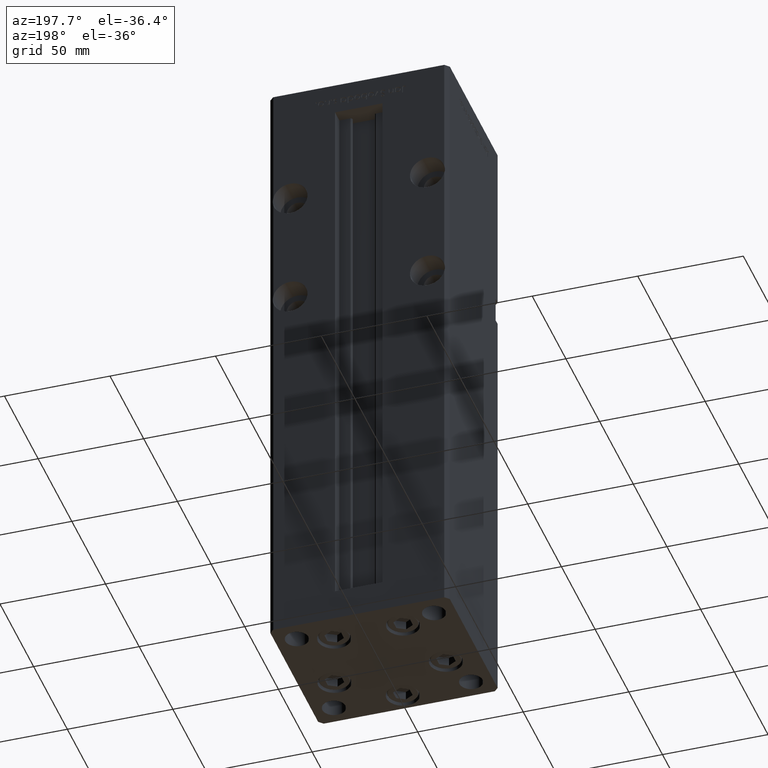
[diagram: clean part render]
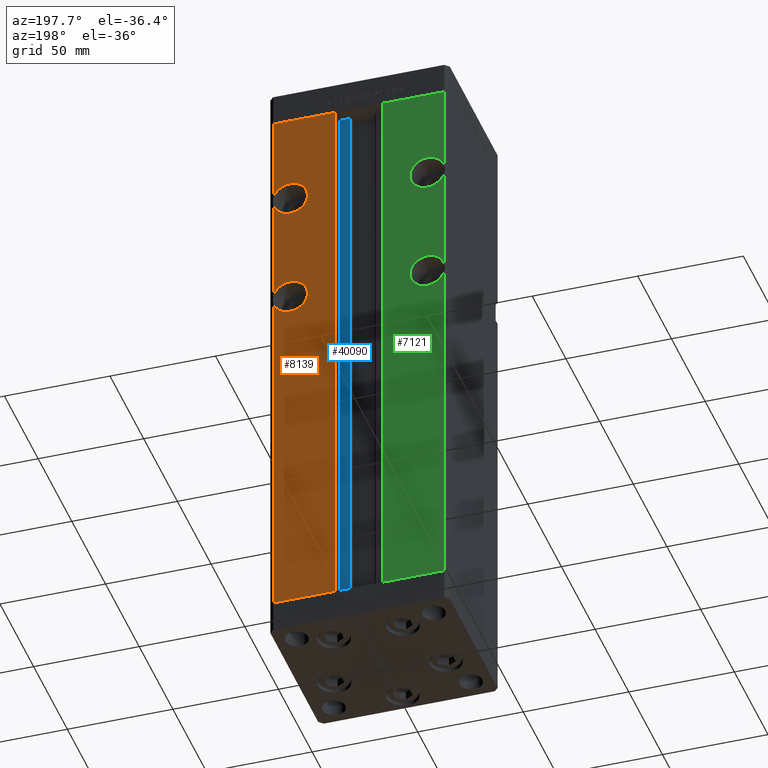
[diagram: same view with three faces highlighted in distinct colors, each labeled with its STEP entity id]
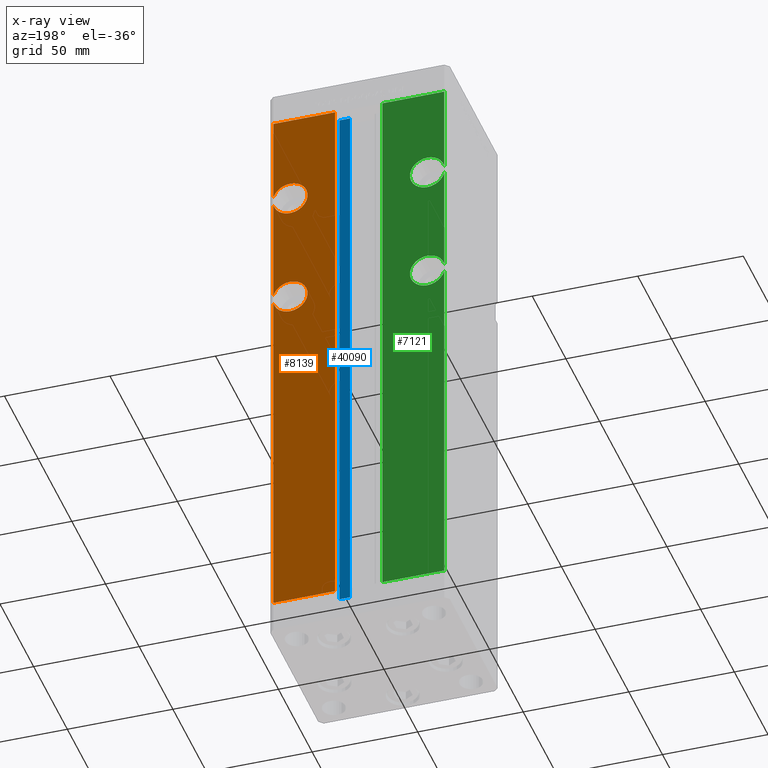
[diagram: x-ray of the same camera — body ghosted, the three highlighted faces saturated]
A machine part, auxiliary view with three faces highlighted in distinct colors.
The next image is the same camera in x-ray (body ghosted, the three faces saturated) — at least one of them is partly hidden behind the body in this view.
Their STEP definitions:

[orange] entity #8139 — the highlighted planar face has unit normal (0, -1, 0).
#942 = DIRECTION ( 'NONE',  ( 0.000000000000000000, 1.000000000000000000, -0.000000000000000000 ) ) ;
#1061 = CIRCLE ( 'NONE', #21654, 8.250000000000007105 ) ;
#1625 = CARTESIAN_POINT ( 'NONE',  ( 11.24999999999999822, 37.50000000000000000, 0.000000000000000000 ) ) ;
#1927 = CARTESIAN_POINT ( 'NONE',  ( 40.50000000000000711, 37.50000000000000000, 268.5000000000000000 ) ) ;
#2258 = CARTESIAN_POINT ( 'NONE',  ( 40.50000000000000711, 37.50000000000000000, 222.9844355629253414 ) ) ;
#2446 = EDGE_CURVE ( 'NONE', #51573, #25390, #18846, .T. ) ;
#2738 = CARTESIAN_POINT ( 'NONE',  ( -11.24999999999999822, 37.50000000000000000, 268.5000000000000000 ) ) ;
#3798 = CARTESIAN_POINT ( 'NONE',  ( 32.50000000000000000, 37.50000000000000000, 225.0000000000000000 ) ) ;
#3879 = AXIS2_PLACEMENT_3D ( 'NONE', #13113, #29508, #45937 ) ;
#4083 = CARTESIAN_POINT ( 'NONE',  ( 11.24999999999999112, 37.50000000000000000, 268.5000000000000000 ) ) ;
#4401 = CIRCLE ( 'NONE', #49073, 8.250000000000007105 ) ;
#4534 = LINE ( 'NONE', #37340, #28814 ) ;
#4565 = DIRECTION ( 'NONE',  ( 0.000000000000000000, 1.000000000000000000, 0.000000000000000000 ) ) ;
#4590 = CARTESIAN_POINT ( 'NONE',  ( -11.24999999999999822, 37.50000000000000000, 0.000000000000000000 ) ) ;
#4802 = EDGE_CURVE ( 'NONE', #51573, #8678, #35374, .T. ) ;
#5229 = VERTEX_POINT ( 'NONE', #18434 ) ;
#5263 = VECTOR ( 'NONE', #27439, 1000.000000000000000 ) ;
#7223 = ORIENTED_EDGE ( 'NONE', *, *, #2446, .T. ) ;
#7787 = VECTOR ( 'NONE', #40653, 1000.000000000000000 ) ;
#7886 = EDGE_CURVE ( 'NONE', #25390, #30614, #44683, .T. ) ;
#8139 = ADVANCED_FACE ( 'NONE', ( #33548 ), #49988, .F. ) ;
#8678 = VERTEX_POINT ( 'NONE', #10014 ) ;
#8936 = DIRECTION ( 'NONE',  ( 0.000000000000000000, 0.000000000000000000, -1.000000000000000000 ) ) ;
#9530 = EDGE_CURVE ( 'NONE', #50506, #50237, #4534, .T. ) ;
#10014 = CARTESIAN_POINT ( 'NONE',  ( 32.50000000000000000, 37.50000000000000000, 161.7500000000000000 ) ) ;
#10574 = CARTESIAN_POINT ( 'NONE',  ( 32.50000000000000000, 37.50000000000000000, 170.0000000000000000 ) ) ;
#10728 = ORIENTED_EDGE ( 'NONE', *, *, #9530, .T. ) ;
#12164 = AXIS2_PLACEMENT_3D ( 'NONE', #10574, #26971, #43401 ) ;
#12429 = DIRECTION ( 'NONE',  ( 0.000000000000000000, 1.000000000000000000, -0.000000000000000000 ) ) ;
#13113 = CARTESIAN_POINT ( 'NONE',  ( -11.24999999999999822, 37.50000000000000000, 268.5000000000000000 ) ) ;
#13367 = ORIENTED_EDGE ( 'NONE', *, *, #4802, .F. ) ;
#14092 = DIRECTION ( 'NONE',  ( 0.000000000000000000, 0.000000000000000000, -1.000000000000000000 ) ) ;
#14549 = LINE ( 'NONE', #2738, #15615 ) ;
#15615 = VECTOR ( 'NONE', #35273, 1000.000000000000000 ) ;
#16031 = ORIENTED_EDGE ( 'NONE', *, *, #44708, .T. ) ;
#16670 = CARTESIAN_POINT ( 'NONE',  ( 40.50000000000000711, 37.50000000000000000, 227.0155644370746586 ) ) ;
#17807 = VERTEX_POINT ( 'NONE', #4083 ) ;
#18036 = LINE ( 'NONE', #1927, #42257 ) ;
#18434 = CARTESIAN_POINT ( 'NONE',  ( 32.50000000000000000, 37.50000000000000000, 178.2500000000000284 ) ) ;
#18846 = LINE ( 'NONE', #39033, #5263 ) ;
#18868 = CARTESIAN_POINT ( 'NONE',  ( 40.50000000000000711, 37.50000000000000000, 172.0155644370746018 ) ) ;
#19685 = DIRECTION ( 'NONE',  ( 0.000000000000000000, 0.000000000000000000, 1.000000000000000000 ) ) ;
#20645 = EDGE_LOOP ( 'NONE', ( #36551, #32825, #42958, #13367, #7223, #36293, #16031, #41354, #10728, #35917, #27075, #25435 ) ) ;
#21654 = AXIS2_PLACEMENT_3D ( 'NONE', #3798, #24222, #44676 ) ;
#21888 = CARTESIAN_POINT ( 'NONE',  ( 32.50000000000000000, 37.50000000000000000, 170.0000000000000000 ) ) ;
#23469 = CARTESIAN_POINT ( 'NONE',  ( 32.50000000000000000, 37.50000000000000000, 225.0000000000000000 ) ) ;
#23903 = EDGE_CURVE ( 'NONE', #5229, #44603, #39457, .T. ) ;
#24222 = DIRECTION ( 'NONE',  ( 0.000000000000000000, 1.000000000000000000, 0.000000000000000000 ) ) ;
#24227 = LINE ( 'NONE', #40908, #7787 ) ;
#25390 = VERTEX_POINT ( 'NONE', #50095 ) ;
#25435 = ORIENTED_EDGE ( 'NONE', *, *, #28834, .F. ) ;
#26971 = DIRECTION ( 'NONE',  ( 0.000000000000000000, 1.000000000000000000, -0.000000000000000000 ) ) ;
#27075 = ORIENTED_EDGE ( 'NONE', *, *, #48449, .F. ) ;
#27439 = DIRECTION ( 'NONE',  ( -0.000000000000000000, -0.000000000000000000, -1.000000000000000000 ) ) ;
#28306 = CIRCLE ( 'NONE', #53208, 8.250000000000007105 ) ;
#28574 = CARTESIAN_POINT ( 'NONE',  ( 32.50000000000000000, 37.50000000000000000, 170.0000000000000000 ) ) ;
#28814 = VECTOR ( 'NONE', #49726, 1000.000000000000000 ) ;
#28834 = EDGE_CURVE ( 'NONE', #49129, #33196, #28306, .T. ) ;
#29508 = DIRECTION ( 'NONE',  ( 0.000000000000000000, -1.000000000000000000, 0.000000000000000000 ) ) ;
#30614 = VERTEX_POINT ( 'NONE', #1625 ) ;
#32825 = ORIENTED_EDGE ( 'NONE', *, *, #23903, .F. ) ;
#33196 = VERTEX_POINT ( 'NONE', #34059 ) ;
#33548 = FACE_OUTER_BOUND ( 'NONE', #20645, .T. ) ;
#34059 = CARTESIAN_POINT ( 'NONE',  ( 32.50000000000000000, 37.50000000000000000, 216.7500000000000000 ) ) ;
#35273 = DIRECTION ( 'NONE',  ( 1.000000000000000000, 0.000000000000000000, 0.000000000000000000 ) ) ;
#35374 = CIRCLE ( 'NONE', #12164, 8.250000000000007105 ) ;
#35851 = DIRECTION ( 'NONE',  ( 0.000000000000000000, 1.000000000000000000, 0.000000000000000000 ) ) ;
#35917 = ORIENTED_EDGE ( 'NONE', *, *, #50229, .F. ) ;
#36293 = ORIENTED_EDGE ( 'NONE', *, *, #7886, .T. ) ;
#36551 = ORIENTED_EDGE ( 'NONE', *, *, #49364, .T. ) ;
#36552 = VECTOR ( 'NONE', #40910, 1000.000000000000000 ) ;
#37340 = CARTESIAN_POINT ( 'NONE',  ( 40.50000000000000711, 37.50000000000000000, 268.5000000000000000 ) ) ;
#38801 = AXIS2_PLACEMENT_3D ( 'NONE', #28574, #12429, #8936 ) ;
#39033 = CARTESIAN_POINT ( 'NONE',  ( 40.50000000000000711, 37.50000000000000000, 268.5000000000000000 ) ) ;
#39457 = CIRCLE ( 'NONE', #42024, 8.250000000000007105 ) ;
#39520 = CARTESIAN_POINT ( 'NONE',  ( 40.50000000000000711, 37.50000000000000000, 268.5000000000000000 ) ) ;
#40653 = DIRECTION ( 'NONE',  ( -0.000000000000000000, -0.000000000000000000, 1.000000000000000000 ) ) ;
#40908 = CARTESIAN_POINT ( 'NONE',  ( 11.24999999999999822, 37.50000000000000000, 0.000000000000000000 ) ) ;
#40910 = DIRECTION ( 'NONE',  ( -1.000000000000000000, 0.000000000000000000, 0.000000000000000000 ) ) ;
#41354 = ORIENTED_EDGE ( 'NONE', *, *, #49403, .T. ) ;
#41411 = CARTESIAN_POINT ( 'NONE',  ( 32.50000000000000000, 37.50000000000000000, 225.0000000000000000 ) ) ;
#42024 = AXIS2_PLACEMENT_3D ( 'NONE', #21888, #942, #14092 ) ;
#42257 = VECTOR ( 'NONE', #47104, 1000.000000000000000 ) ;
#42958 = ORIENTED_EDGE ( 'NONE', *, *, #49332, .F. ) ;
#43401 = DIRECTION ( 'NONE',  ( 0.000000000000000000, 0.000000000000000000, -1.000000000000000000 ) ) ;
#43968 = CIRCLE ( 'NONE', #38801, 8.250000000000007105 ) ;
#44603 = VERTEX_POINT ( 'NONE', #18868 ) ;
#44676 = DIRECTION ( 'NONE',  ( 0.000000000000000000, 0.000000000000000000, 1.000000000000000000 ) ) ;
#44683 = LINE ( 'NONE', #4590, #36552 ) ;
#44708 = EDGE_CURVE ( 'NONE', #30614, #17807, #24227, .T. ) ;
#44828 = CARTESIAN_POINT ( 'NONE',  ( 40.50000000000000711, 37.50000000000000000, 167.9844355629254267 ) ) ;
#45937 = DIRECTION ( 'NONE',  ( 0.000000000000000000, -0.000000000000000000, -1.000000000000000000 ) ) ;
#47104 = DIRECTION ( 'NONE',  ( -0.000000000000000000, -0.000000000000000000, -1.000000000000000000 ) ) ;
#48449 = EDGE_CURVE ( 'NONE', #33196, #51185, #4401, .T. ) ;
#48714 = DIRECTION ( 'NONE',  ( 0.000000000000000000, 0.000000000000000000, 1.000000000000000000 ) ) ;
#49073 = AXIS2_PLACEMENT_3D ( 'NONE', #23469, #35851, #19685 ) ;
#49129 = VERTEX_POINT ( 'NONE', #2258 ) ;
#49266 = CARTESIAN_POINT ( 'NONE',  ( 32.50000000000000000, 37.50000000000000000, 233.2500000000000000 ) ) ;
#49332 = EDGE_CURVE ( 'NONE', #8678, #5229, #43968, .T. ) ;
#49364 = EDGE_CURVE ( 'NONE', #49129, #44603, #18036, .T. ) ;
#49403 = EDGE_CURVE ( 'NONE', #17807, #50506, #14549, .T. ) ;
#49726 = DIRECTION ( 'NONE',  ( -0.000000000000000000, -0.000000000000000000, -1.000000000000000000 ) ) ;
#49988 = PLANE ( 'NONE',  #3879 ) ;
#50095 = CARTESIAN_POINT ( 'NONE',  ( 40.50000000000000711, 37.50000000000000000, 0.000000000000000000 ) ) ;
#50229 = EDGE_CURVE ( 'NONE', #51185, #50237, #1061, .T. ) ;
#50237 = VERTEX_POINT ( 'NONE', #16670 ) ;
#50506 = VERTEX_POINT ( 'NONE', #39520 ) ;
#51185 = VERTEX_POINT ( 'NONE', #49266 ) ;
#51573 = VERTEX_POINT ( 'NONE', #44828 ) ;
#53208 = AXIS2_PLACEMENT_3D ( 'NONE', #41411, #4565, #48714 ) ;

[blue] entity #40090 — the highlighted planar face has unit normal (0, -1, 0).
#211 = CARTESIAN_POINT ( 'NONE',  ( 0.000000000000000000, 31.00000000000000000, 268.5000000000000000 ) ) ;
#3025 = DIRECTION ( 'NONE',  ( -0.000000000000000000, -0.000000000000000000, 1.000000000000000000 ) ) ;
#3547 = EDGE_CURVE ( 'NONE', #9878, #12960, #34500, .T. ) ;
#6907 = AXIS2_PLACEMENT_3D ( 'NONE', #45770, #8134, #40681 ) ;
#8134 = DIRECTION ( 'NONE',  ( 0.000000000000000000, -1.000000000000000000, 0.000000000000000000 ) ) ;
#8881 = VERTEX_POINT ( 'NONE', #11350 ) ;
#8905 = EDGE_CURVE ( 'NONE', #8881, #18139, #40128, .T. ) ;
#9426 = VECTOR ( 'NONE', #41555, 1000.000000000000000 ) ;
#9878 = VERTEX_POINT ( 'NONE', #46083 ) ;
#10812 = CARTESIAN_POINT ( 'NONE',  ( 6.183333333333997928, 31.00000000000000000, 0.000000000000000000 ) ) ;
#11350 = CARTESIAN_POINT ( 'NONE',  ( 6.183333333333997928, 31.00000000000000000, 0.000000000000000000 ) ) ;
#12960 = VERTEX_POINT ( 'NONE', #52776 ) ;
#16231 = ORIENTED_EDGE ( 'NONE', *, *, #3547, .F. ) ;
#16424 = VECTOR ( 'NONE', #18082, 1000.000000000000000 ) ;
#16595 = DIRECTION ( 'NONE',  ( -1.000000000000000000, 0.000000000000000000, 0.000000000000000000 ) ) ;
#18082 = DIRECTION ( 'NONE',  ( -0.000000000000000000, -0.000000000000000000, 1.000000000000000000 ) ) ;
#18139 = VERTEX_POINT ( 'NONE', #33834 ) ;
#20835 = LINE ( 'NONE', #37513, #9426 ) ;
#26232 = VECTOR ( 'NONE', #3025, 1000.000000000000000 ) ;
#26826 = EDGE_CURVE ( 'NONE', #12960, #18139, #41878, .T. ) ;
#28845 = ORIENTED_EDGE ( 'NONE', *, *, #38191, .F. ) ;
#30728 = CARTESIAN_POINT ( 'NONE',  ( 11.24999999999999822, 31.00000000000000000, 0.000000000000000000 ) ) ;
#30784 = ORIENTED_EDGE ( 'NONE', *, *, #8905, .T. ) ;
#31814 = VECTOR ( 'NONE', #16595, 1000.000000000000000 ) ;
#32860 = FACE_OUTER_BOUND ( 'NONE', #48759, .T. ) ;
#33834 = CARTESIAN_POINT ( 'NONE',  ( 6.183333333333997928, 31.00000000000000000, 268.5000000000000000 ) ) ;
#34500 = LINE ( 'NONE', #30728, #16424 ) ;
#37513 = CARTESIAN_POINT ( 'NONE',  ( 6.183333333333997928, 31.00000000000000000, 0.000000000000000000 ) ) ;
#38191 = EDGE_CURVE ( 'NONE', #8881, #9878, #20835, .T. ) ;
#40090 = ADVANCED_FACE ( 'NONE', ( #32860 ), #53061, .F. ) ;
#40128 = LINE ( 'NONE', #10812, #26232 ) ;
#40681 = DIRECTION ( 'NONE',  ( 0.000000000000000000, -0.000000000000000000, -1.000000000000000000 ) ) ;
#41555 = DIRECTION ( 'NONE',  ( 1.000000000000000000, 0.000000000000000000, 0.000000000000000000 ) ) ;
#41878 = LINE ( 'NONE', #211, #31814 ) ;
#44753 = ORIENTED_EDGE ( 'NONE', *, *, #26826, .F. ) ;
#45770 = CARTESIAN_POINT ( 'NONE',  ( 6.183333333333997928, 31.00000000000000000, 0.000000000000000000 ) ) ;
#46083 = CARTESIAN_POINT ( 'NONE',  ( 11.24999999999999822, 31.00000000000000000, 0.000000000000000000 ) ) ;
#48759 = EDGE_LOOP ( 'NONE', ( #16231, #28845, #30784, #44753 ) ) ;
#52776 = CARTESIAN_POINT ( 'NONE',  ( 11.24999999999999822, 31.00000000000000000, 268.5000000000000000 ) ) ;
#53061 = PLANE ( 'NONE',  #6907 ) ;

[green] entity #7121 — the highlighted planar face has unit normal (0, -1, 0).
#44 = VERTEX_POINT ( 'NONE', #6275 ) ;
#1711 = DIRECTION ( 'NONE',  ( 0.000000000000000000, 1.000000000000000000, 0.000000000000000000 ) ) ;
#1941 = ORIENTED_EDGE ( 'NONE', *, *, #44833, .T. ) ;
#2137 = CARTESIAN_POINT ( 'NONE',  ( -40.50000000000000711, 37.50000000000000000, 167.9844355629253982 ) ) ;
#2608 = CIRCLE ( 'NONE', #41224, 8.250000000000007105 ) ;
#2762 = EDGE_CURVE ( 'NONE', #26470, #23551, #16060, .T. ) ;
#2806 = VERTEX_POINT ( 'NONE', #12019 ) ;
#3024 = VERTEX_POINT ( 'NONE', #32644 ) ;
#3650 = EDGE_CURVE ( 'NONE', #26470, #19321, #31001, .T. ) ;
#3958 = CARTESIAN_POINT ( 'NONE',  ( -40.50000000000000711, 37.50000000000000000, 222.9844355629253698 ) ) ;
#4222 = DIRECTION ( 'NONE',  ( -1.000000000000000000, 0.000000000000000000, 0.000000000000000000 ) ) ;
#4237 = CIRCLE ( 'NONE', #19698, 8.250000000000007105 ) ;
#5502 = CARTESIAN_POINT ( 'NONE',  ( -40.50000000000000711, 37.50000000000000000, 268.5000000000000000 ) ) ;
#6275 = CARTESIAN_POINT ( 'NONE',  ( -40.50000000000000711, 37.50000000000000000, 172.0155644370746302 ) ) ;
#6423 = AXIS2_PLACEMENT_3D ( 'NONE', #50301, #17982, #37383 ) ;
#6570 = EDGE_CURVE ( 'NONE', #38524, #23551, #42345, .T. ) ;
#6751 = ORIENTED_EDGE ( 'NONE', *, *, #26712, .F. ) ;
#7121 = ADVANCED_FACE ( 'NONE', ( #33607 ), #20968, .F. ) ;
#7217 = DIRECTION ( 'NONE',  ( 0.000000000000000000, 0.000000000000000000, 1.000000000000000000 ) ) ;
#7337 = CARTESIAN_POINT ( 'NONE',  ( -11.24999999999999822, 37.50000000000000000, 0.000000000000000000 ) ) ;
#8348 = CARTESIAN_POINT ( 'NONE',  ( -40.50000000000000711, 37.50000000000000000, 0.000000000000000000 ) ) ;
#8686 = VECTOR ( 'NONE', #4222, 1000.000000000000000 ) ;
#9523 = EDGE_CURVE ( 'NONE', #40559, #44, #16096, .T. ) ;
#9599 = VECTOR ( 'NONE', #40139, 1000.000000000000000 ) ;
#11082 = EDGE_CURVE ( 'NONE', #2806, #50863, #26313, .T. ) ;
#11403 = CARTESIAN_POINT ( 'NONE',  ( -32.50000000000000000, 37.50000000000000000, 216.7500000000000000 ) ) ;
#11503 = DIRECTION ( 'NONE',  ( 0.000000000000000000, 1.000000000000000000, 0.000000000000000000 ) ) ;
#11822 = EDGE_CURVE ( 'NONE', #3024, #33790, #44743, .T. ) ;
#12019 = CARTESIAN_POINT ( 'NONE',  ( -32.50000000000000000, 37.50000000000000000, 233.2500000000000000 ) ) ;
#12590 = CARTESIAN_POINT ( 'NONE',  ( -40.50000000000000711, 37.50000000000000000, 268.5000000000000000 ) ) ;
#12652 = CARTESIAN_POINT ( 'NONE',  ( -11.24999999999999822, 37.50000000000000000, 268.5000000000000000 ) ) ;
#12667 = DIRECTION ( 'NONE',  ( 0.000000000000000000, 0.000000000000000000, 1.000000000000000000 ) ) ;
#12967 = CARTESIAN_POINT ( 'NONE',  ( -40.50000000000000711, 37.50000000000000000, 227.0155644370746302 ) ) ;
#13323 = VERTEX_POINT ( 'NONE', #19867 ) ;
#14231 = VECTOR ( 'NONE', #28985, 1000.000000000000000 ) ;
#14649 = CIRCLE ( 'NONE', #39579, 8.250000000000007105 ) ;
#15625 = ORIENTED_EDGE ( 'NONE', *, *, #6570, .F. ) ;
#15927 = DIRECTION ( 'NONE',  ( 0.000000000000000000, 1.000000000000000000, -0.000000000000000000 ) ) ;
#16060 = LINE ( 'NONE', #40561, #8686 ) ;
#16096 = LINE ( 'NONE', #12590, #14231 ) ;
#17273 = ORIENTED_EDGE ( 'NONE', *, *, #11822, .F. ) ;
#17982 = DIRECTION ( 'NONE',  ( 0.000000000000000000, -1.000000000000000000, 0.000000000000000000 ) ) ;
#18044 = VECTOR ( 'NONE', #26332, 1000.000000000000000 ) ;
#18540 = CARTESIAN_POINT ( 'NONE',  ( -11.24999999999999822, 37.50000000000000000, 268.5000000000000000 ) ) ;
#19321 = VERTEX_POINT ( 'NONE', #12652 ) ;
#19698 = AXIS2_PLACEMENT_3D ( 'NONE', #28429, #11503, #7217 ) ;
#19867 = CARTESIAN_POINT ( 'NONE',  ( -32.50000000000000000, 37.50000000000000000, 178.2500000000000284 ) ) ;
#20512 = ORIENTED_EDGE ( 'NONE', *, *, #3650, .F. ) ;
#20897 = CARTESIAN_POINT ( 'NONE',  ( -32.50000000000000000, 37.50000000000000000, 225.0000000000000000 ) ) ;
#20968 = PLANE ( 'NONE',  #6423 ) ;
#22055 = DIRECTION ( 'NONE',  ( 0.000000000000000000, 1.000000000000000000, 0.000000000000000000 ) ) ;
#23551 = VERTEX_POINT ( 'NONE', #8348 ) ;
#25127 = EDGE_CURVE ( 'NONE', #13323, #51784, #51526, .T. ) ;
#26313 = CIRCLE ( 'NONE', #38346, 8.250000000000007105 ) ;
#26332 = DIRECTION ( 'NONE',  ( 1.000000000000000000, 0.000000000000000000, 0.000000000000000000 ) ) ;
#26421 = DIRECTION ( 'NONE',  ( 0.000000000000000000, 0.000000000000000000, -1.000000000000000000 ) ) ;
#26470 = VERTEX_POINT ( 'NONE', #53015 ) ;
#26712 = EDGE_CURVE ( 'NONE', #50863, #40559, #14649, .T. ) ;
#27788 = DIRECTION ( 'NONE',  ( -0.000000000000000000, -0.000000000000000000, -1.000000000000000000 ) ) ;
#28283 = EDGE_CURVE ( 'NONE', #51784, #38524, #4237, .T. ) ;
#28311 = AXIS2_PLACEMENT_3D ( 'NONE', #38549, #1711, #49885 ) ;
#28429 = CARTESIAN_POINT ( 'NONE',  ( -32.50000000000000000, 37.50000000000000000, 170.0000000000000000 ) ) ;
#28836 = CARTESIAN_POINT ( 'NONE',  ( -40.50000000000000711, 37.50000000000000000, 268.5000000000000000 ) ) ;
#28868 = DIRECTION ( 'NONE',  ( 0.000000000000000000, 1.000000000000000000, -0.000000000000000000 ) ) ;
#28985 = DIRECTION ( 'NONE',  ( -0.000000000000000000, -0.000000000000000000, -1.000000000000000000 ) ) ;
#29598 = CARTESIAN_POINT ( 'NONE',  ( -32.50000000000000000, 37.50000000000000000, 170.0000000000000000 ) ) ;
#30169 = ORIENTED_EDGE ( 'NONE', *, *, #52925, .F. ) ;
#31001 = LINE ( 'NONE', #7337, #9599 ) ;
#32223 = EDGE_LOOP ( 'NONE', ( #32905, #6751, #38994, #38838, #17273, #1941, #20512, #47598, #15625, #41177, #52436, #30169 ) ) ;
#32644 = CARTESIAN_POINT ( 'NONE',  ( -40.50000000000000711, 37.50000000000000000, 268.5000000000000000 ) ) ;
#32905 = ORIENTED_EDGE ( 'NONE', *, *, #9523, .F. ) ;
#33607 = FACE_OUTER_BOUND ( 'NONE', #32223, .T. ) ;
#33790 = VERTEX_POINT ( 'NONE', #12967 ) ;
#34606 = CIRCLE ( 'NONE', #50108, 8.250000000000007105 ) ;
#34819 = CARTESIAN_POINT ( 'NONE',  ( -32.50000000000000000, 37.50000000000000000, 161.7500000000000000 ) ) ;
#35323 = DIRECTION ( 'NONE',  ( 0.000000000000000000, 0.000000000000000000, -1.000000000000000000 ) ) ;
#37383 = DIRECTION ( 'NONE',  ( 0.000000000000000000, -0.000000000000000000, -1.000000000000000000 ) ) ;
#38110 = DIRECTION ( 'NONE',  ( 0.000000000000000000, 0.000000000000000000, -1.000000000000000000 ) ) ;
#38346 = AXIS2_PLACEMENT_3D ( 'NONE', #49349, #28868, #26421 ) ;
#38524 = VERTEX_POINT ( 'NONE', #2137 ) ;
#38549 = CARTESIAN_POINT ( 'NONE',  ( -32.50000000000000000, 37.50000000000000000, 170.0000000000000000 ) ) ;
#38568 = DIRECTION ( 'NONE',  ( -0.000000000000000000, -0.000000000000000000, -1.000000000000000000 ) ) ;
#38838 = ORIENTED_EDGE ( 'NONE', *, *, #39989, .F. ) ;
#38994 = ORIENTED_EDGE ( 'NONE', *, *, #11082, .F. ) ;
#38995 = LINE ( 'NONE', #18540, #18044 ) ;
#39579 = AXIS2_PLACEMENT_3D ( 'NONE', #20897, #46184, #38110 ) ;
#39989 = EDGE_CURVE ( 'NONE', #33790, #2806, #2608, .T. ) ;
#40139 = DIRECTION ( 'NONE',  ( -0.000000000000000000, -0.000000000000000000, 1.000000000000000000 ) ) ;
#40559 = VERTEX_POINT ( 'NONE', #3958 ) ;
#40561 = CARTESIAN_POINT ( 'NONE',  ( -11.24999999999999822, 37.50000000000000000, 0.000000000000000000 ) ) ;
#40930 = VECTOR ( 'NONE', #27788, 1000.000000000000000 ) ;
#41177 = ORIENTED_EDGE ( 'NONE', *, *, #28283, .F. ) ;
#41224 = AXIS2_PLACEMENT_3D ( 'NONE', #44455, #15927, #35323 ) ;
#42345 = LINE ( 'NONE', #5502, #51120 ) ;
#44455 = CARTESIAN_POINT ( 'NONE',  ( -32.50000000000000000, 37.50000000000000000, 225.0000000000000000 ) ) ;
#44743 = LINE ( 'NONE', #28836, #40930 ) ;
#44833 = EDGE_CURVE ( 'NONE', #3024, #19321, #38995, .T. ) ;
#46184 = DIRECTION ( 'NONE',  ( 0.000000000000000000, 1.000000000000000000, -0.000000000000000000 ) ) ;
#47598 = ORIENTED_EDGE ( 'NONE', *, *, #2762, .T. ) ;
#49349 = CARTESIAN_POINT ( 'NONE',  ( -32.50000000000000000, 37.50000000000000000, 225.0000000000000000 ) ) ;
#49885 = DIRECTION ( 'NONE',  ( 0.000000000000000000, 0.000000000000000000, 1.000000000000000000 ) ) ;
#50108 = AXIS2_PLACEMENT_3D ( 'NONE', #29598, #22055, #12667 ) ;
#50301 = CARTESIAN_POINT ( 'NONE',  ( -11.24999999999999822, 37.50000000000000000, 268.5000000000000000 ) ) ;
#50863 = VERTEX_POINT ( 'NONE', #11403 ) ;
#51120 = VECTOR ( 'NONE', #38568, 1000.000000000000000 ) ;
#51526 = CIRCLE ( 'NONE', #28311, 8.250000000000007105 ) ;
#51784 = VERTEX_POINT ( 'NONE', #34819 ) ;
#52436 = ORIENTED_EDGE ( 'NONE', *, *, #25127, .F. ) ;
#52925 = EDGE_CURVE ( 'NONE', #44, #13323, #34606, .T. ) ;
#53015 = CARTESIAN_POINT ( 'NONE',  ( -11.24999999999999822, 37.50000000000000000, 0.000000000000000000 ) ) ;